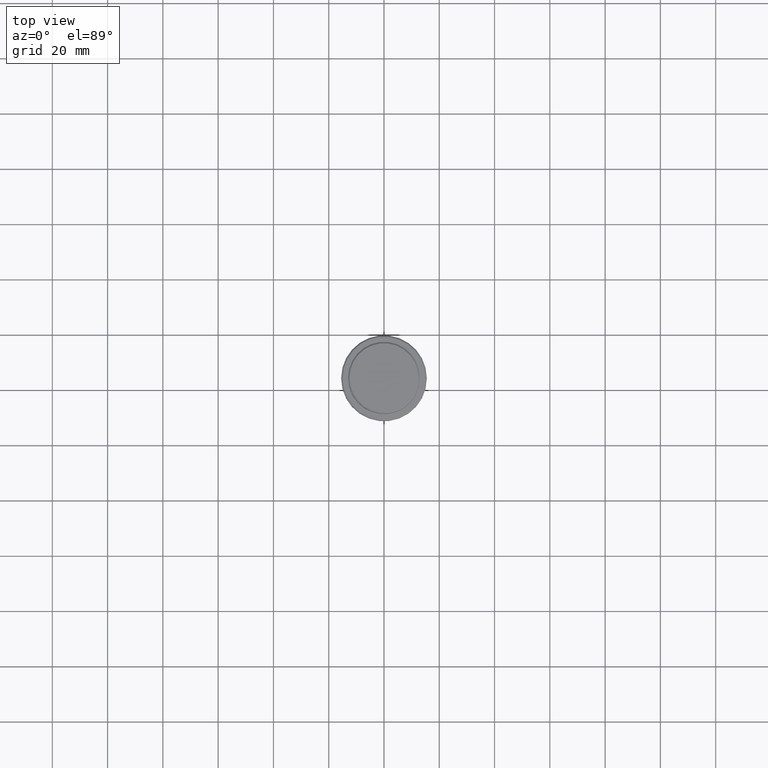
[diagram: clean part render]
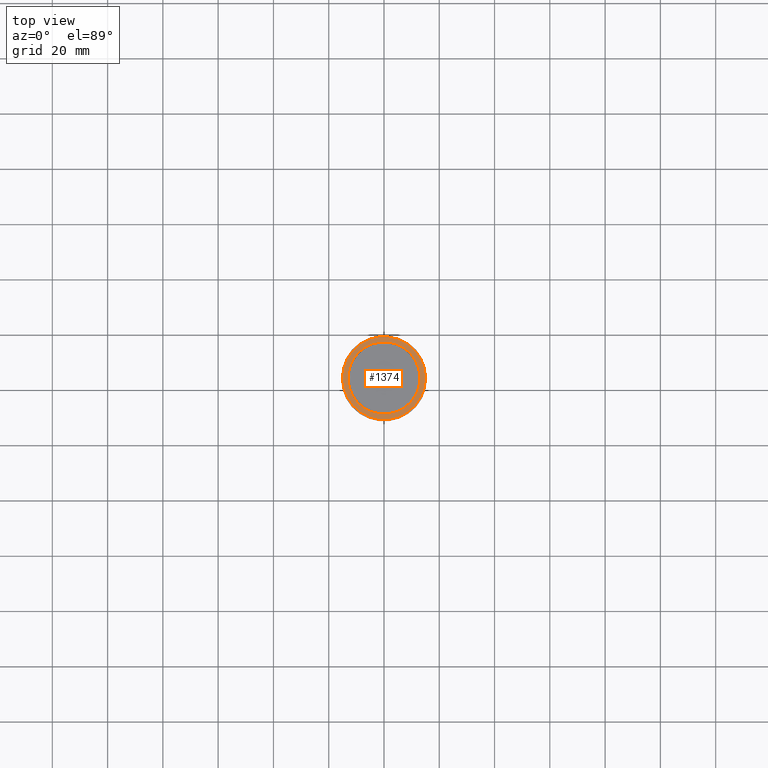
[diagram: same view with one face highlighted and labeled with its STEP entity id]
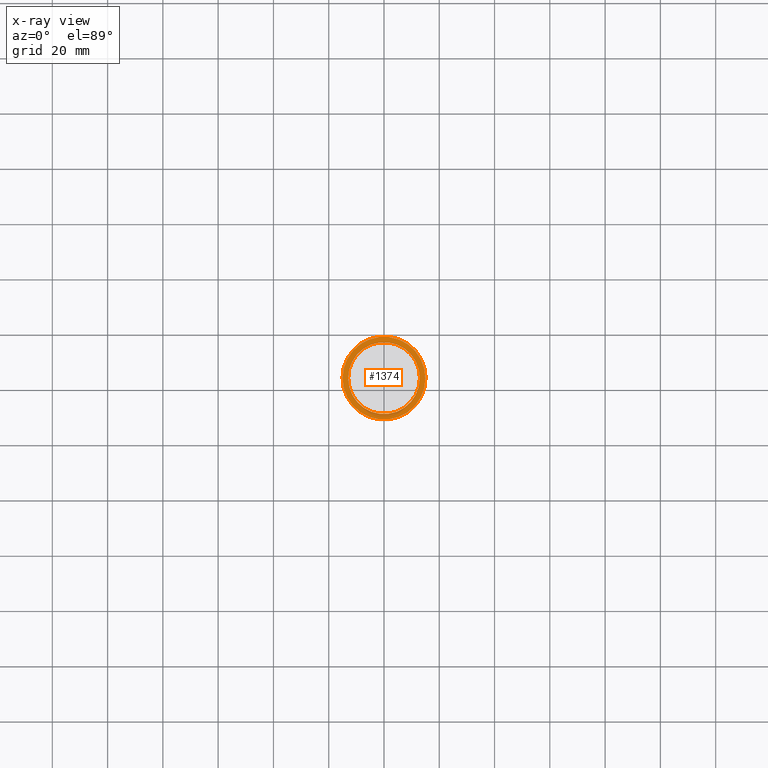
[diagram: x-ray of the same camera — body ghosted, the highlighted face saturated]
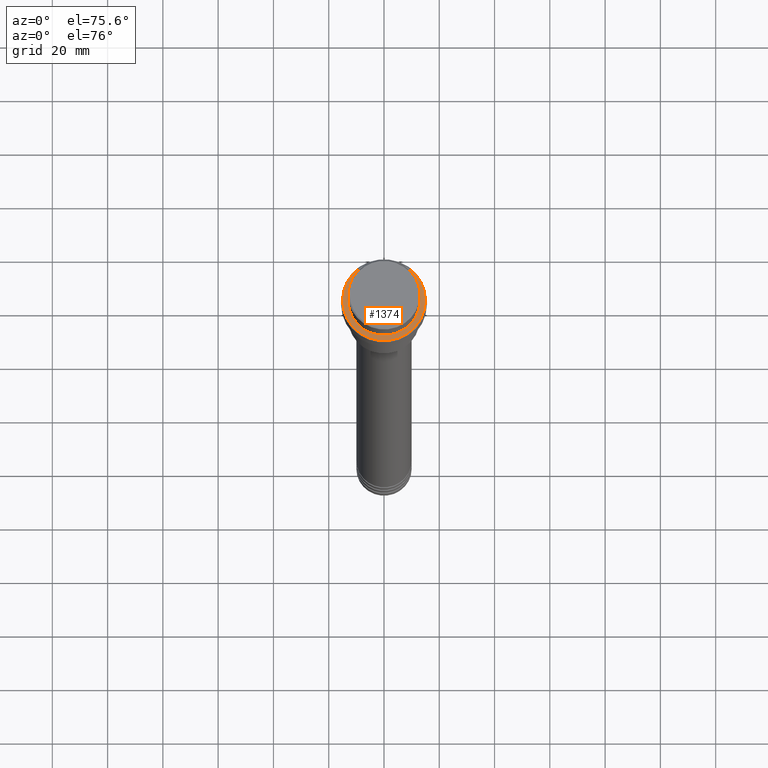
[diagram: same view with one face highlighted and labeled with its STEP entity id]
A machine part, top view. The second image highlights one B-rep face of the part: STEP entity #1374.
The next image is the same camera in x-ray: the body ghosted, the highlighted face saturated — about 0% of this face is hidden behind the body in this view.
A second angle (auxiliary view) of the same face is appended — the face is thin or edge-on in the first view.
In plain terms, the highlighted planar face has unit normal (0, -0, 1).
Its self-contained STEP definition (entity closure, byte-faithful):
#30 = DIRECTION ( 'NONE',  ( -0.000000000000000000, -0.000000000000000000, 1.000000000000000000 ) ) ;
#89 = CARTESIAN_POINT ( 'NONE',  ( 14.99999999999995737, 1.867586368699711009E-15, -9.000000000000000000 ) ) ;
#95 = CARTESIAN_POINT ( 'NONE',  ( 0.000000000000000000, 0.000000000000000000, -9.000000000000000000 ) ) ;
#116 = VERTEX_POINT ( 'NONE', #662 ) ;
#128 = DIRECTION ( 'NONE',  ( 0.000000000000000000, 0.000000000000000000, -1.000000000000000000 ) ) ;
#146 = DIRECTION ( 'NONE',  ( 1.000000000000000000, 0.000000000000000000, 0.000000000000000000 ) ) ;
#177 = AXIS2_PLACEMENT_3D ( 'NONE', #995, #128, #1347 ) ;
#211 = CARTESIAN_POINT ( 'NONE',  ( -12.99999999999999467, 1.592040838891558504E-15, -9.000000000000000000 ) ) ;
#218 = CIRCLE ( 'NONE', #473, 12.99999999999999467 ) ;
#228 = CARTESIAN_POINT ( 'NONE',  ( -14.99999999999995737, 0.000000000000000000, -9.000000000000000000 ) ) ;
#284 = CIRCLE ( 'NONE', #177, 12.99999999999999467 ) ;
#324 = AXIS2_PLACEMENT_3D ( 'NONE', #999, #30, #1345 ) ;
#369 = EDGE_CURVE ( 'NONE', #884, #116, #284, .T. ) ;
#415 = DIRECTION ( 'NONE',  ( 1.000000000000000000, 0.000000000000000000, 0.000000000000000000 ) ) ;
#432 = EDGE_LOOP ( 'NONE', ( #660, #1292 ) ) ;
#463 = CARTESIAN_POINT ( 'NONE',  ( 0.000000000000000000, 0.000000000000000000, -9.000000000000000000 ) ) ;
#473 = AXIS2_PLACEMENT_3D ( 'NONE', #463, #763, #146 ) ;
#529 = DIRECTION ( 'NONE',  ( -0.000000000000000000, -0.000000000000000000, 1.000000000000000000 ) ) ;
#660 = ORIENTED_EDGE ( 'NONE', *, *, #783, .T. ) ;
#662 = CARTESIAN_POINT ( 'NONE',  ( 12.99999999999999467, 0.000000000000000000, -9.000000000000000000 ) ) ;
#681 = EDGE_CURVE ( 'NONE', #976, #851, #766, .T. ) ;
#728 = FACE_BOUND ( 'NONE', #432, .T. ) ;
#763 = DIRECTION ( 'NONE',  ( 0.000000000000000000, 0.000000000000000000, -1.000000000000000000 ) ) ;
#766 = CIRCLE ( 'NONE', #324, 14.99999999999995737 ) ;
#783 = EDGE_CURVE ( 'NONE', #116, #884, #218, .T. ) ;
#815 = EDGE_CURVE ( 'NONE', #851, #976, #1134, .T. ) ;
#826 = PLANE ( 'NONE',  #1136 ) ;
#851 = VERTEX_POINT ( 'NONE', #228 ) ;
#852 = AXIS2_PLACEMENT_3D ( 'NONE', #95, #529, #1163 ) ;
#884 = VERTEX_POINT ( 'NONE', #211 ) ;
#976 = VERTEX_POINT ( 'NONE', #89 ) ;
#995 = CARTESIAN_POINT ( 'NONE',  ( 0.000000000000000000, 0.000000000000000000, -9.000000000000000000 ) ) ;
#999 = CARTESIAN_POINT ( 'NONE',  ( 0.000000000000000000, 0.000000000000000000, -9.000000000000000000 ) ) ;
#1041 = ORIENTED_EDGE ( 'NONE', *, *, #815, .T. ) ;
#1049 = ORIENTED_EDGE ( 'NONE', *, *, #681, .T. ) ;
#1134 = CIRCLE ( 'NONE', #852, 14.99999999999995737 ) ;
#1136 = AXIS2_PLACEMENT_3D ( 'NONE', #1142, #1167, #415 ) ;
#1142 = CARTESIAN_POINT ( 'NONE',  ( 0.000000000000000000, 12.49999999999999289, -9.000000000000000000 ) ) ;
#1163 = DIRECTION ( 'NONE',  ( 1.000000000000000000, 0.000000000000000000, 0.000000000000000000 ) ) ;
#1167 = DIRECTION ( 'NONE',  ( 0.000000000000000000, -0.000000000000000000, 1.000000000000000000 ) ) ;
#1197 = EDGE_LOOP ( 'NONE', ( #1041, #1049 ) ) ;
#1292 = ORIENTED_EDGE ( 'NONE', *, *, #369, .T. ) ;
#1345 = DIRECTION ( 'NONE',  ( 1.000000000000000000, 0.000000000000000000, 0.000000000000000000 ) ) ;
#1347 = DIRECTION ( 'NONE',  ( 1.000000000000000000, 0.000000000000000000, 0.000000000000000000 ) ) ;
#1374 = ADVANCED_FACE ( 'NONE', ( #1384, #728 ), #826, .T. ) ;
#1384 = FACE_OUTER_BOUND ( 'NONE', #1197, .T. ) ;